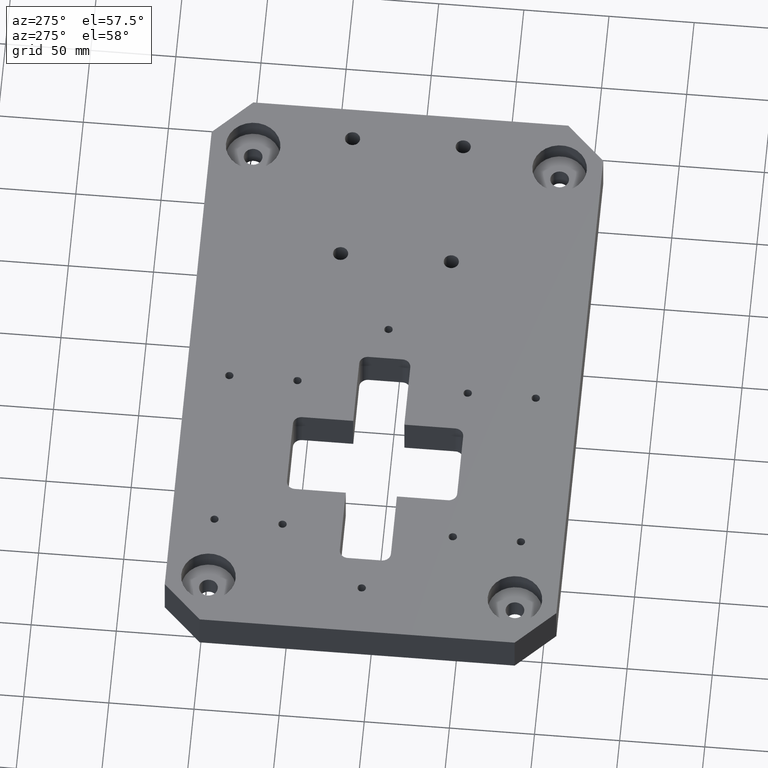
[diagram: clean part render]
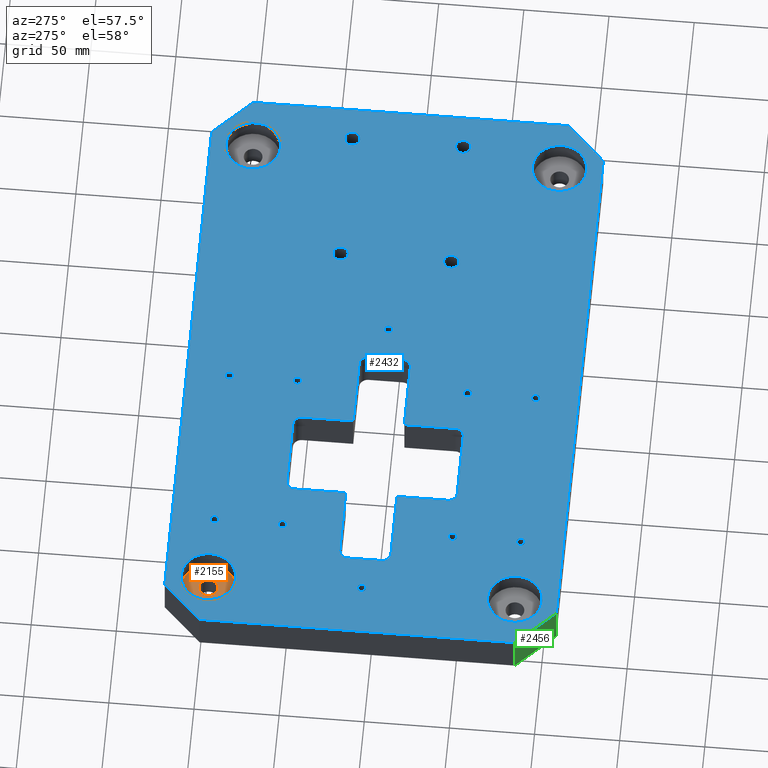
[diagram: same view with three faces highlighted in distinct colors, each labeled with its STEP entity id]
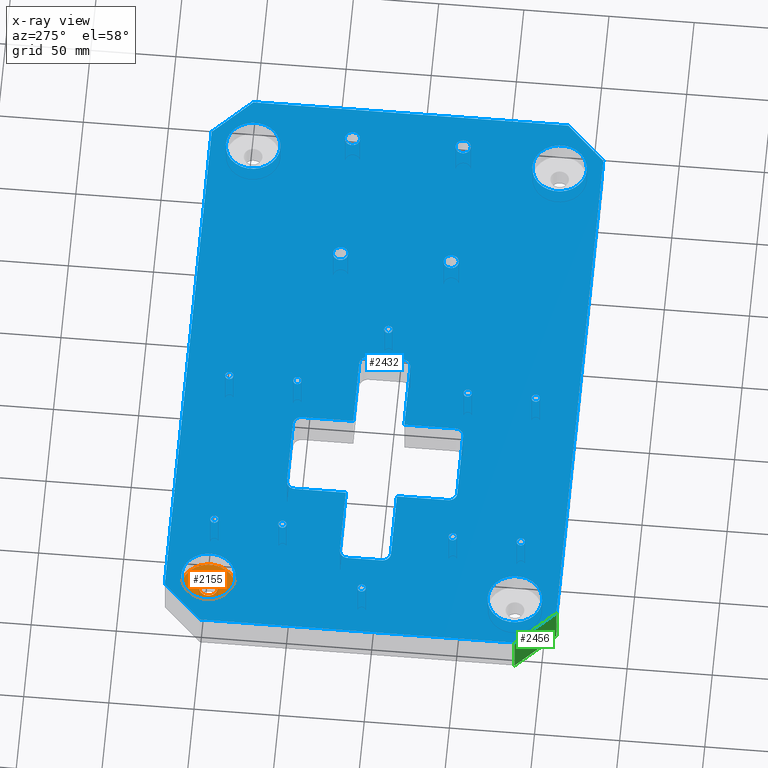
[diagram: x-ray of the same camera — body ghosted, the three highlighted faces saturated]
A machine part, auxiliary view with three faces highlighted in distinct colors.
The next image is the same camera in x-ray (body ghosted, the three faces saturated) — at least one of them is partly hidden behind the body in this view.
Their STEP definitions:

[orange] entity #2155 — the highlighted planar face has unit normal (0, 0, -1).
#141=CARTESIAN_POINT('',(-150.0,95.500000000000000,0.499999999999943));
#142=VERTEX_POINT('',#141);
#151=CARTESIAN_POINT('',(-150.0,84.500000000000000,0.500000000000000));
#152=VERTEX_POINT('',#151);
#153=CARTESIAN_POINT('',(-150.0,90.0,0.500000000000000));
#154=DIRECTION('',(0.0,0.0,-1.0));
#155=DIRECTION('',(0.0,1.0,0.0));
#156=AXIS2_PLACEMENT_3D('',#153,#154,#155);
#157=CIRCLE('',#156,5.500000000000000);
#158=EDGE_CURVE('',#152,#142,#157,.T.);
#185=CARTESIAN_POINT('',(-150.0,106.0,0.500000000000000));
#186=VERTEX_POINT('',#185);
#202=CARTESIAN_POINT('',(-150.0,74.0,0.500000000000000));
#203=VERTEX_POINT('',#202);
#210=CARTESIAN_POINT('',(-150.0,90.0,0.500000000000000));
#211=DIRECTION('',(0.0,0.0,-1.0));
#212=DIRECTION('',(0.0,1.0,0.0));
#213=AXIS2_PLACEMENT_3D('',#210,#211,#212);
#214=CIRCLE('',#213,16.0);
#215=EDGE_CURVE('',#203,#186,#214,.T.);
#2130=CARTESIAN_POINT('',(-150.0,90.0,0.500000000000000));
#2131=DIRECTION('',(0.0,0.0,-1.0));
#2132=DIRECTION('',(0.0,1.0,0.0));
#2133=AXIS2_PLACEMENT_3D('',#2130,#2131,#2132);
#2134=PLANE('',#2133);
#2135=CARTESIAN_POINT('',(-150.0,90.0,0.500000000000000));
#2136=DIRECTION('',(0.0,0.0,-1.0));
#2137=DIRECTION('',(0.0,1.0,0.0));
#2138=AXIS2_PLACEMENT_3D('',#2135,#2136,#2137);
#2139=CIRCLE('',#2138,16.0);
#2140=EDGE_CURVE('',#186,#203,#2139,.T.);
#2141=ORIENTED_EDGE('',*,*,#2140,.F.);
#2142=ORIENTED_EDGE('',*,*,#215,.F.);
#2143=EDGE_LOOP('',(#2141,#2142));
#2144=FACE_OUTER_BOUND('',#2143,.T.);
#2145=ORIENTED_EDGE('',*,*,#158,.T.);
#2146=CARTESIAN_POINT('',(-150.0,90.0,0.500000000000000));
#2147=DIRECTION('',(0.0,0.0,-1.0));
#2148=DIRECTION('',(0.0,1.0,0.0));
#2149=AXIS2_PLACEMENT_3D('',#2146,#2147,#2148);
#2150=CIRCLE('',#2149,5.500000000000000);
#2151=EDGE_CURVE('',#142,#152,#2150,.T.);
#2152=ORIENTED_EDGE('',*,*,#2151,.T.);
#2153=EDGE_LOOP('',(#2145,#2152));
#2154=FACE_BOUND('',#2153,.T.);
#2155=ADVANCED_FACE('',(#2144,#2154),#2134,.F.);

[blue] entity #2432 — the highlighted planar face has unit normal (0, 0, -1).
#183=CARTESIAN_POINT('',(-150.0,106.0,12.500000000000000));
#184=VERTEX_POINT('',#183);
#193=CARTESIAN_POINT('',(-150.0,74.0,12.500000000000000));
#194=VERTEX_POINT('',#193);
#195=CARTESIAN_POINT('',(-150.0,90.0,12.500000000000000));
#196=DIRECTION('',(0.0,0.0,-1.0));
#197=DIRECTION('',(0.0,1.0,0.0));
#198=AXIS2_PLACEMENT_3D('',#195,#196,#197);
#199=CIRCLE('',#198,16.0);
#200=EDGE_CURVE('',#194,#184,#199,.T.);
#267=CARTESIAN_POINT('',(-150.0,-74.0,12.500000000000000));
#268=VERTEX_POINT('',#267);
#277=CARTESIAN_POINT('',(-150.0,-106.0,12.500000000000000));
#278=VERTEX_POINT('',#277);
#279=CARTESIAN_POINT('',(-150.0,-90.0,12.500000000000000));
#280=DIRECTION('',(0.0,0.0,-1.0));
#281=DIRECTION('',(0.0,1.0,0.0));
#282=AXIS2_PLACEMENT_3D('',#279,#280,#281);
#283=CIRCLE('',#282,16.0);
#284=EDGE_CURVE('',#278,#268,#283,.T.);
#351=CARTESIAN_POINT('',(150.0,106.000000000000070,12.500000000000000));
#352=VERTEX_POINT('',#351);
#361=CARTESIAN_POINT('',(150.0,74.000000000000071,12.500000000000000));
#362=VERTEX_POINT('',#361);
#363=CARTESIAN_POINT('',(150.0,90.000000000000071,12.500000000000000));
#364=DIRECTION('',(0.0,0.0,-1.0));
#365=DIRECTION('',(0.0,1.0,0.0));
#366=AXIS2_PLACEMENT_3D('',#363,#364,#365);
#367=CIRCLE('',#366,16.0);
#368=EDGE_CURVE('',#362,#352,#367,.T.);
#435=CARTESIAN_POINT('',(150.0,-73.999999999999943,12.500000000000000));
#436=VERTEX_POINT('',#435);
#445=CARTESIAN_POINT('',(150.0,-105.999999999999940,12.500000000000000));
#446=VERTEX_POINT('',#445);
#447=CARTESIAN_POINT('',(150.0,-89.999999999999943,12.500000000000000));
#448=DIRECTION('',(0.0,0.0,-1.0));
#449=DIRECTION('',(0.0,1.0,0.0));
#450=AXIS2_PLACEMENT_3D('',#447,#448,#449);
#451=CIRCLE('',#450,16.0);
#452=EDGE_CURVE('',#446,#436,#451,.T.);
#477=CARTESIAN_POINT('',(159.999999999999970,36.956000000000003,12.500000000000000));
#478=VERTEX_POINT('',#477);
#487=CARTESIAN_POINT('',(159.999999999999970,28.044000000000000,12.500000000000000));
#488=VERTEX_POINT('',#487);
#489=CARTESIAN_POINT('',(159.999999999999970,32.500000000000000,12.500000000000000));
#490=DIRECTION('',(0.0,0.0,-1.0));
#491=DIRECTION('',(0.0,1.0,0.0));
#492=AXIS2_PLACEMENT_3D('',#489,#490,#491);
#493=CIRCLE('',#492,4.456000000000000);
#494=EDGE_CURVE('',#488,#478,#493,.T.);
#519=CARTESIAN_POINT('',(159.999999999999970,-28.044000000000000,12.500000000000000));
#520=VERTEX_POINT('',#519);
#529=CARTESIAN_POINT('',(159.999999999999970,-36.956000000000003,12.500000000000000));
#530=VERTEX_POINT('',#529);
#531=CARTESIAN_POINT('',(159.999999999999970,-32.500000000000000,12.500000000000000));
#532=DIRECTION('',(0.0,0.0,-1.0));
#533=DIRECTION('',(0.0,1.0,0.0));
#534=AXIS2_PLACEMENT_3D('',#531,#532,#533);
#535=CIRCLE('',#534,4.456000000000000);
#536=EDGE_CURVE('',#530,#520,#535,.T.);
#561=CARTESIAN_POINT('',(79.999999999999972,36.955999999999989,12.500000000000000));
#562=VERTEX_POINT('',#561);
#571=CARTESIAN_POINT('',(79.999999999999972,28.043999999999986,12.500000000000000));
#572=VERTEX_POINT('',#571);
#573=CARTESIAN_POINT('',(79.999999999999972,32.499999999999986,12.500000000000000));
#574=DIRECTION('',(0.0,0.0,-1.0));
#575=DIRECTION('',(0.0,1.0,0.0));
#576=AXIS2_PLACEMENT_3D('',#573,#574,#575);
#577=CIRCLE('',#576,4.456000000000000);
#578=EDGE_CURVE('',#572,#562,#577,.T.);
#603=CARTESIAN_POINT('',(79.999999999999972,-28.044000000000015,12.500000000000000));
#604=VERTEX_POINT('',#603);
#613=CARTESIAN_POINT('',(79.999999999999972,-36.956000000000017,12.500000000000000));
#614=VERTEX_POINT('',#613);
#615=CARTESIAN_POINT('',(79.999999999999972,-32.500000000000014,12.500000000000000));
#616=DIRECTION('',(0.0,0.0,-1.0));
#617=DIRECTION('',(0.0,1.0,0.0));
#618=AXIS2_PLACEMENT_3D('',#615,#616,#617);
#619=CIRCLE('',#618,4.456000000000000);
#620=EDGE_CURVE('',#614,#604,#619,.T.);
#645=CARTESIAN_POINT('',(-110.000000000000010,92.458749999999995,12.500000000000000));
#646=VERTEX_POINT('',#645);
#655=CARTESIAN_POINT('',(-110.000000000000010,87.541250000000005,12.500000000000000));
#656=VERTEX_POINT('',#655);
#657=CARTESIAN_POINT('',(-110.000000000000010,90.0,12.500000000000000));
#658=DIRECTION('',(0.0,0.0,-1.0));
#659=DIRECTION('',(0.0,1.0,0.0));
#660=AXIS2_PLACEMENT_3D('',#657,#658,#659);
#661=CIRCLE('',#660,2.458750000000000);
#662=EDGE_CURVE('',#656,#646,#661,.T.);
#687=CARTESIAN_POINT('',(-110.000000000000010,52.458750000000002,12.500000000000000));
#688=VERTEX_POINT('',#687);
#697=CARTESIAN_POINT('',(-110.000000000000010,47.541249999999998,12.500000000000000));
#698=VERTEX_POINT('',#697);
#699=CARTESIAN_POINT('',(-110.000000000000010,50.0,12.500000000000000));
#700=DIRECTION('',(0.0,0.0,-1.0));
#701=DIRECTION('',(0.0,1.0,0.0));
#702=AXIS2_PLACEMENT_3D('',#699,#700,#701);
#703=CIRCLE('',#702,2.458750000000000);
#704=EDGE_CURVE('',#698,#688,#703,.T.);
#729=CARTESIAN_POINT('',(-10.000000000000014,92.458750000000023,12.500000000000000));
#730=VERTEX_POINT('',#729);
#739=CARTESIAN_POINT('',(-10.000000000000014,87.541250000000034,12.500000000000000));
#740=VERTEX_POINT('',#739);
#741=CARTESIAN_POINT('',(-10.000000000000014,90.000000000000028,12.500000000000000));
#742=DIRECTION('',(0.0,0.0,-1.0));
#743=DIRECTION('',(0.0,1.0,0.0));
#744=AXIS2_PLACEMENT_3D('',#741,#742,#743);
#745=CIRCLE('',#744,2.458750000000000);
#746=EDGE_CURVE('',#740,#730,#745,.T.);
#771=CARTESIAN_POINT('',(-10.000000000000014,52.458750000000023,12.500000000000000));
#772=VERTEX_POINT('',#771);
#781=CARTESIAN_POINT('',(-10.000000000000014,47.541250000000019,12.500000000000000));
#782=VERTEX_POINT('',#781);
#783=CARTESIAN_POINT('',(-10.000000000000014,50.000000000000021,12.500000000000000));
#784=DIRECTION('',(0.0,0.0,-1.0));
#785=DIRECTION('',(0.0,1.0,0.0));
#786=AXIS2_PLACEMENT_3D('',#783,#784,#785);
#787=CIRCLE('',#786,2.458750000000000);
#788=EDGE_CURVE('',#782,#772,#787,.T.);
#813=CARTESIAN_POINT('',(-110.000000000000010,-47.541250000000005,12.500000000000000));
#814=VERTEX_POINT('',#813);
#823=CARTESIAN_POINT('',(-110.000000000000010,-52.458750000000002,12.500000000000000));
#824=VERTEX_POINT('',#823);
#825=CARTESIAN_POINT('',(-110.000000000000010,-50.0,12.500000000000000));
#826=DIRECTION('',(0.0,0.0,-1.0));
#827=DIRECTION('',(0.0,1.0,0.0));
#828=AXIS2_PLACEMENT_3D('',#825,#826,#827);
#829=CIRCLE('',#828,2.458750000000000);
#830=EDGE_CURVE('',#824,#814,#829,.T.);
#855=CARTESIAN_POINT('',(-110.000000000000010,-87.541249999999991,12.500000000000000));
#856=VERTEX_POINT('',#855);
#865=CARTESIAN_POINT('',(-110.000000000000010,-92.458749999999995,12.500000000000000));
#866=VERTEX_POINT('',#865);
#867=CARTESIAN_POINT('',(-110.000000000000010,-90.0,12.500000000000000));
#868=DIRECTION('',(0.0,0.0,-1.0));
#869=DIRECTION('',(0.0,1.0,0.0));
#870=AXIS2_PLACEMENT_3D('',#867,#868,#869);
#871=CIRCLE('',#870,2.458750000000000);
#872=EDGE_CURVE('',#866,#856,#871,.T.);
#897=CARTESIAN_POINT('',(-10.000000000000014,-47.541249999999977,12.500000000000000));
#898=VERTEX_POINT('',#897);
#907=CARTESIAN_POINT('',(-10.000000000000014,-52.458749999999974,12.500000000000000));
#908=VERTEX_POINT('',#907);
#909=CARTESIAN_POINT('',(-10.000000000000014,-49.999999999999972,12.500000000000000));
#910=DIRECTION('',(0.0,0.0,-1.0));
#911=DIRECTION('',(0.0,1.0,0.0));
#912=AXIS2_PLACEMENT_3D('',#909,#910,#911);
#913=CIRCLE('',#912,2.458750000000000);
#914=EDGE_CURVE('',#908,#898,#913,.T.);
#939=CARTESIAN_POINT('',(-10.000000000000014,-87.541249999999977,12.500000000000000));
#940=VERTEX_POINT('',#939);
#949=CARTESIAN_POINT('',(-10.000000000000014,-92.458749999999966,12.500000000000000));
#950=VERTEX_POINT('',#949);
#951=CARTESIAN_POINT('',(-10.000000000000014,-89.999999999999972,12.500000000000000));
#952=DIRECTION('',(0.0,0.0,-1.0));
#953=DIRECTION('',(0.0,1.0,0.0));
#954=AXIS2_PLACEMENT_3D('',#951,#952,#953);
#955=CIRCLE('',#954,2.458750000000000);
#956=EDGE_CURVE('',#950,#940,#955,.T.);
#981=CARTESIAN_POINT('',(-150.000000000000030,2.458750000000000,12.500000000000000));
#982=VERTEX_POINT('',#981);
#991=CARTESIAN_POINT('',(-150.000000000000030,-2.458750000000000,12.500000000000000));
#992=VERTEX_POINT('',#991);
#993=CARTESIAN_POINT('',(-150.000000000000030,0.0,12.500000000000000));
#994=DIRECTION('',(0.0,0.0,-1.0));
#995=DIRECTION('',(0.0,1.0,0.0));
#996=AXIS2_PLACEMENT_3D('',#993,#994,#995);
#997=CIRCLE('',#996,2.458750000000000);
#998=EDGE_CURVE('',#992,#982,#997,.T.);
#1023=CARTESIAN_POINT('',(29.999999999999972,2.458750000000040,12.500000000000000));
#1024=VERTEX_POINT('',#1023);
#1033=CARTESIAN_POINT('',(29.999999999999972,-2.458749999999960,12.500000000000000));
#1034=VERTEX_POINT('',#1033);
#1035=CARTESIAN_POINT('',(29.999999999999972,3.996803E-014,12.500000000000000));
#1036=DIRECTION('',(0.0,0.0,-1.0));
#1037=DIRECTION('',(0.0,1.0,0.0));
#1038=AXIS2_PLACEMENT_3D('',#1035,#1036,#1037);
#1039=CIRCLE('',#1038,2.458750000000000);
#1040=EDGE_CURVE('',#1034,#1024,#1039,.T.);
#1074=CARTESIAN_POINT('',(29.999999999999972,3.996803E-014,12.500000000000000));
#1075=DIRECTION('',(0.0,0.0,-1.0));
#1076=DIRECTION('',(0.0,1.0,0.0));
#1077=AXIS2_PLACEMENT_3D('',#1074,#1075,#1076);
#1078=CIRCLE('',#1077,2.458750000000000);
#1079=EDGE_CURVE('',#1024,#1034,#1078,.T.);
#1098=CARTESIAN_POINT('',(-150.000000000000030,0.0,12.500000000000000));
#1099=DIRECTION('',(0.0,0.0,-1.0));
#1100=DIRECTION('',(0.0,1.0,0.0));
#1101=AXIS2_PLACEMENT_3D('',#1098,#1099,#1100);
#1102=CIRCLE('',#1101,2.458750000000000);
#1103=EDGE_CURVE('',#982,#992,#1102,.T.);
#1122=CARTESIAN_POINT('',(-10.000000000000014,-89.999999999999972,12.500000000000000));
#1123=DIRECTION('',(0.0,0.0,-1.0));
#1124=DIRECTION('',(0.0,1.0,0.0));
#1125=AXIS2_PLACEMENT_3D('',#1122,#1123,#1124);
#1126=CIRCLE('',#1125,2.458750000000000);
#1127=EDGE_CURVE('',#940,#950,#1126,.T.);
#1146=CARTESIAN_POINT('',(-10.000000000000014,-49.999999999999972,12.500000000000000));
#1147=DIRECTION('',(0.0,0.0,-1.0));
#1148=DIRECTION('',(0.0,1.0,0.0));
#1149=AXIS2_PLACEMENT_3D('',#1146,#1147,#1148);
#1150=CIRCLE('',#1149,2.458750000000000);
#1151=EDGE_CURVE('',#898,#908,#1150,.T.);
#1170=CARTESIAN_POINT('',(-110.000000000000010,-90.0,12.500000000000000));
#1171=DIRECTION('',(0.0,0.0,-1.0));
#1172=DIRECTION('',(0.0,1.0,0.0));
#1173=AXIS2_PLACEMENT_3D('',#1170,#1171,#1172);
#1174=CIRCLE('',#1173,2.458750000000000);
#1175=EDGE_CURVE('',#856,#866,#1174,.T.);
#1194=CARTESIAN_POINT('',(-110.000000000000010,-50.0,12.500000000000000));
#1195=DIRECTION('',(0.0,0.0,-1.0));
#1196=DIRECTION('',(0.0,1.0,0.0));
#1197=AXIS2_PLACEMENT_3D('',#1194,#1195,#1196);
#1198=CIRCLE('',#1197,2.458750000000000);
#1199=EDGE_CURVE('',#814,#824,#1198,.T.);
#1218=CARTESIAN_POINT('',(-10.000000000000014,50.000000000000021,12.500000000000000));
#1219=DIRECTION('',(0.0,0.0,-1.0));
#1220=DIRECTION('',(0.0,1.0,0.0));
#1221=AXIS2_PLACEMENT_3D('',#1218,#1219,#1220);
#1222=CIRCLE('',#1221,2.458750000000000);
#1223=EDGE_CURVE('',#772,#782,#1222,.T.);
#1242=CARTESIAN_POINT('',(-10.000000000000014,90.000000000000028,12.500000000000000));
#1243=DIRECTION('',(0.0,0.0,-1.0));
#1244=DIRECTION('',(0.0,1.0,0.0));
#1245=AXIS2_PLACEMENT_3D('',#1242,#1243,#1244);
#1246=CIRCLE('',#1245,2.458750000000000);
#1247=EDGE_CURVE('',#730,#740,#1246,.T.);
#1266=CARTESIAN_POINT('',(-110.000000000000010,50.0,12.500000000000000));
#1267=DIRECTION('',(0.0,0.0,-1.0));
#1268=DIRECTION('',(0.0,1.0,0.0));
#1269=AXIS2_PLACEMENT_3D('',#1266,#1267,#1268);
#1270=CIRCLE('',#1269,2.458750000000000);
#1271=EDGE_CURVE('',#688,#698,#1270,.T.);
#1290=CARTESIAN_POINT('',(-110.000000000000010,90.0,12.500000000000000));
#1291=DIRECTION('',(0.0,0.0,-1.0));
#1292=DIRECTION('',(0.0,1.0,0.0));
#1293=AXIS2_PLACEMENT_3D('',#1290,#1291,#1292);
#1294=CIRCLE('',#1293,2.458750000000000);
#1295=EDGE_CURVE('',#646,#656,#1294,.T.);
#1305=CARTESIAN_POINT('',(-84.999999999999829,-45.0,12.500000000000000));
#1306=VERTEX_POINT('',#1305);
#1307=CARTESIAN_POINT('',(-79.999999999999829,-50.0,12.500000000000000));
#1308=VERTEX_POINT('',#1307);
#1309=CARTESIAN_POINT('',(-79.999999999999829,-45.0,12.500000000000012));
#1310=DIRECTION('',(0.0,0.0,1.000000000000000));
#1311=DIRECTION('',(-0.707106781186547,-0.707106781186547,0.0));
#1312=AXIS2_PLACEMENT_3D('',#1309,#1310,#1311);
#1313=CIRCLE('',#1312,4.999999999999999);
#1314=EDGE_CURVE('',#1306,#1308,#1313,.T.);
#1348=CARTESIAN_POINT('',(-39.999999999999829,-50.0,12.500000000000000));
#1349=VERTEX_POINT('',#1348);
#1350=CARTESIAN_POINT('',(-79.999999999999829,-50.0,12.500000000000000));
#1351=DIRECTION('',(1.0,0.0,0.0));
#1352=VECTOR('',#1351,40.0);
#1353=LINE('',#1350,#1352);
#1354=EDGE_CURVE('',#1308,#1349,#1353,.T.);
#1378=CARTESIAN_POINT('',(-34.999999999999829,-45.0,12.500000000000000));
#1379=VERTEX_POINT('',#1378);
#1380=CARTESIAN_POINT('',(-39.999999999999829,-45.0,12.500000000000012));
#1381=DIRECTION('',(0.0,0.0,1.000000000000000));
#1382=DIRECTION('',(0.707106781186547,-0.707106781186547,0.0));
#1383=AXIS2_PLACEMENT_3D('',#1380,#1381,#1382);
#1384=CIRCLE('',#1383,4.999999999999999);
#1385=EDGE_CURVE('',#1349,#1379,#1384,.T.);
#1412=CARTESIAN_POINT('',(-34.999999999999829,-15.0,12.500000000000000));
#1413=VERTEX_POINT('',#1412);
#1414=CARTESIAN_POINT('',(-34.999999999999829,-45.0,12.500000000000000));
#1415=DIRECTION('',(0.0,1.0,0.0));
#1416=VECTOR('',#1415,30.0);
#1417=LINE('',#1414,#1416);
#1418=EDGE_CURVE('',#1379,#1413,#1417,.T.);
#1442=CARTESIAN_POINT('',(5.000000000000185,-15.0,12.500000000000000));
#1443=VERTEX_POINT('',#1442);
#1444=CARTESIAN_POINT('',(10.000000000000185,-10.0,12.500000000000000));
#1445=VERTEX_POINT('',#1444);
#1446=CARTESIAN_POINT('',(5.000000000000185,-10.0,12.500000000000004));
#1447=DIRECTION('',(0.0,0.0,1.000000000000000));
#1448=DIRECTION('',(0.707106781186547,-0.707106781186547,0.0));
#1449=AXIS2_PLACEMENT_3D('',#1446,#1447,#1448);
#1450=CIRCLE('',#1449,4.999999999999999);
#1451=EDGE_CURVE('',#1443,#1445,#1450,.T.);
#1485=CARTESIAN_POINT('',(10.000000000000185,10.0,12.500000000000000));
#1486=VERTEX_POINT('',#1485);
#1487=CARTESIAN_POINT('',(10.000000000000185,-10.0,12.500000000000000));
#1488=DIRECTION('',(0.0,1.0,0.0));
#1489=VECTOR('',#1488,20.0);
#1490=LINE('',#1487,#1489);
#1491=EDGE_CURVE('',#1445,#1486,#1490,.T.);
#1515=CARTESIAN_POINT('',(5.000000000000185,15.0,12.500000000000000));
#1516=VERTEX_POINT('',#1515);
#1517=CARTESIAN_POINT('',(5.000000000000185,10.0,12.499999999999996));
#1518=DIRECTION('',(0.0,0.0,1.000000000000000));
#1519=DIRECTION('',(0.707106781186547,0.707106781186547,0.0));
#1520=AXIS2_PLACEMENT_3D('',#1517,#1518,#1519);
#1521=CIRCLE('',#1520,4.999999999999999);
#1522=EDGE_CURVE('',#1486,#1516,#1521,.T.);
#1549=CARTESIAN_POINT('',(-34.999999999999829,15.0,12.500000000000000));
#1550=VERTEX_POINT('',#1549);
#1551=CARTESIAN_POINT('',(5.000000000000185,15.0,12.500000000000000));
#1552=DIRECTION('',(-1.0,0.0,0.0));
#1553=VECTOR('',#1552,40.000000000000014);
#1554=LINE('',#1551,#1553);
#1555=EDGE_CURVE('',#1516,#1550,#1554,.T.);
#1579=CARTESIAN_POINT('',(-34.999999999999829,45.0,12.500000000000000));
#1580=VERTEX_POINT('',#1579);
#1581=CARTESIAN_POINT('',(-39.999999999999829,50.0,12.500000000000000));
#1582=VERTEX_POINT('',#1581);
#1583=CARTESIAN_POINT('',(-39.999999999999829,45.0,12.499999999999988));
#1584=DIRECTION('',(0.0,0.0,1.000000000000000));
#1585=DIRECTION('',(0.707106781186547,0.707106781186547,0.0));
#1586=AXIS2_PLACEMENT_3D('',#1583,#1584,#1585);
#1587=CIRCLE('',#1586,4.999999999999999);
#1588=EDGE_CURVE('',#1580,#1582,#1587,.T.);
#1622=CARTESIAN_POINT('',(-79.999999999999829,50.0,12.500000000000000));
#1623=VERTEX_POINT('',#1622);
#1624=CARTESIAN_POINT('',(-39.999999999999829,50.0,12.500000000000000));
#1625=DIRECTION('',(-1.0,0.0,0.0));
#1626=VECTOR('',#1625,40.0);
#1627=LINE('',#1624,#1626);
#1628=EDGE_CURVE('',#1582,#1623,#1627,.T.);
#1652=CARTESIAN_POINT('',(-84.999999999999829,45.0,12.500000000000000));
#1653=VERTEX_POINT('',#1652);
#1654=CARTESIAN_POINT('',(-79.999999999999829,45.0,12.499999999999988));
#1655=DIRECTION('',(0.0,0.0,1.000000000000000));
#1656=DIRECTION('',(-0.707106781186547,0.707106781186547,0.0));
#1657=AXIS2_PLACEMENT_3D('',#1654,#1655,#1656);
#1658=CIRCLE('',#1657,4.999999999999999);
#1659=EDGE_CURVE('',#1623,#1653,#1658,.T.);
#1686=CARTESIAN_POINT('',(-84.999999999999829,15.0,12.500000000000000));
#1687=VERTEX_POINT('',#1686);
#1688=CARTESIAN_POINT('',(-84.999999999999829,45.0,12.500000000000000));
#1689=DIRECTION('',(0.0,-1.0,0.0));
#1690=VECTOR('',#1689,30.0);
#1691=LINE('',#1688,#1690);
#1692=EDGE_CURVE('',#1653,#1687,#1691,.T.);
#1716=CARTESIAN_POINT('',(-129.999999999999830,-10.0,12.500000000000000));
#1717=VERTEX_POINT('',#1716);
#1718=CARTESIAN_POINT('',(-124.999999999999830,-15.0,12.500000000000000));
#1719=VERTEX_POINT('',#1718);
#1720=CARTESIAN_POINT('',(-124.999999999999830,-10.0,12.500000000000004));
#1721=DIRECTION('',(0.0,0.0,1.000000000000000));
#1722=DIRECTION('',(-0.707106781186547,-0.707106781186547,0.0));
#1723=AXIS2_PLACEMENT_3D('',#1720,#1721,#1722);
#1724=CIRCLE('',#1723,4.999999999999999);
#1725=EDGE_CURVE('',#1717,#1719,#1724,.T.);
#1759=CARTESIAN_POINT('',(-84.999999999999815,-15.0,12.500000000000000));
#1760=VERTEX_POINT('',#1759);
#1761=CARTESIAN_POINT('',(-124.999999999999830,-15.0,12.500000000000000));
#1762=DIRECTION('',(1.0,0.0,0.0));
#1763=VECTOR('',#1762,40.000000000000014);
#1764=LINE('',#1761,#1763);
#1765=EDGE_CURVE('',#1719,#1760,#1764,.T.);
#1789=CARTESIAN_POINT('',(-124.999999999999830,15.0,12.500000000000000));
#1790=VERTEX_POINT('',#1789);
#1791=CARTESIAN_POINT('',(-129.999999999999830,10.0,12.500000000000000));
#1792=VERTEX_POINT('',#1791);
#1793=CARTESIAN_POINT('',(-124.999999999999830,10.0,12.499999999999996));
#1794=DIRECTION('',(0.0,0.0,1.000000000000000));
#1795=DIRECTION('',(-0.707106781186547,0.707106781186547,0.0));
#1796=AXIS2_PLACEMENT_3D('',#1793,#1794,#1795);
#1797=CIRCLE('',#1796,4.999999999999999);
#1798=EDGE_CURVE('',#1790,#1792,#1797,.T.);
#1839=CARTESIAN_POINT('',(-129.999999999999830,10.0,12.500000000000000));
#1840=DIRECTION('',(0.0,-1.0,0.0));
#1841=VECTOR('',#1840,20.0);
#1842=LINE('',#1839,#1841);
#1843=EDGE_CURVE('',#1792,#1717,#1842,.T.);
#1862=CARTESIAN_POINT('',(79.999999999999972,-32.500000000000014,12.500000000000000));
#1863=DIRECTION('',(0.0,0.0,-1.0));
#1864=DIRECTION('',(0.0,1.0,0.0));
#1865=AXIS2_PLACEMENT_3D('',#1862,#1863,#1864);
#1866=CIRCLE('',#1865,4.456000000000000);
#1867=EDGE_CURVE('',#604,#614,#1866,.T.);
#1886=CARTESIAN_POINT('',(79.999999999999972,32.499999999999986,12.500000000000000));
#1887=DIRECTION('',(0.0,0.0,-1.0));
#1888=DIRECTION('',(0.0,1.0,0.0));
#1889=AXIS2_PLACEMENT_3D('',#1886,#1887,#1888);
#1890=CIRCLE('',#1889,4.456000000000000);
#1891=EDGE_CURVE('',#562,#572,#1890,.T.);
#1910=CARTESIAN_POINT('',(159.999999999999970,-32.500000000000000,12.500000000000000));
#1911=DIRECTION('',(0.0,0.0,-1.0));
#1912=DIRECTION('',(0.0,1.0,0.0));
#1913=AXIS2_PLACEMENT_3D('',#1910,#1911,#1912);
#1914=CIRCLE('',#1913,4.456000000000000);
#1915=EDGE_CURVE('',#520,#530,#1914,.T.);
#1934=CARTESIAN_POINT('',(159.999999999999970,32.500000000000000,12.500000000000000));
#1935=DIRECTION('',(0.0,0.0,-1.0));
#1936=DIRECTION('',(0.0,1.0,0.0));
#1937=AXIS2_PLACEMENT_3D('',#1934,#1935,#1936);
#1938=CIRCLE('',#1937,4.456000000000000);
#1939=EDGE_CURVE('',#478,#488,#1938,.T.);
#1978=CARTESIAN_POINT('',(150.0,-89.999999999999943,12.500000000000000));
#1979=DIRECTION('',(0.0,0.0,-1.0));
#1980=DIRECTION('',(0.0,1.0,0.0));
#1981=AXIS2_PLACEMENT_3D('',#1978,#1979,#1980);
#1982=CIRCLE('',#1981,16.0);
#1983=EDGE_CURVE('',#436,#446,#1982,.T.);
#2040=CARTESIAN_POINT('',(150.0,90.000000000000071,12.500000000000000));
#2041=DIRECTION('',(0.0,0.0,-1.0));
#2042=DIRECTION('',(0.0,1.0,0.0));
#2043=AXIS2_PLACEMENT_3D('',#2040,#2041,#2042);
#2044=CIRCLE('',#2043,16.0);
#2045=EDGE_CURVE('',#352,#362,#2044,.T.);
#2102=CARTESIAN_POINT('',(-150.0,-90.0,12.500000000000000));
#2103=DIRECTION('',(0.0,0.0,-1.0));
#2104=DIRECTION('',(0.0,1.0,0.0));
#2105=AXIS2_PLACEMENT_3D('',#2102,#2103,#2104);
#2106=CIRCLE('',#2105,16.0);
#2107=EDGE_CURVE('',#268,#278,#2106,.T.);
#2164=CARTESIAN_POINT('',(-150.0,90.0,12.500000000000000));
#2165=DIRECTION('',(0.0,0.0,-1.0));
#2166=DIRECTION('',(0.0,1.0,0.0));
#2167=AXIS2_PLACEMENT_3D('',#2164,#2165,#2166);
#2168=CIRCLE('',#2167,16.0);
#2169=EDGE_CURVE('',#184,#194,#2168,.T.);
#2207=CARTESIAN_POINT('',(180.000000000000030,-92.500000000000000,12.500000000000000));
#2208=VERTEX_POINT('',#2207);
#2215=CARTESIAN_POINT('',(157.500000000000060,-115.0,12.500000000000000));
#2216=VERTEX_POINT('',#2215);
#2217=CARTESIAN_POINT('',(180.000000000000030,-92.500000000000000,12.500000000000000));
#2218=DIRECTION('',(-0.707106781186547,-0.707106781186548,0.0));
#2219=VECTOR('',#2218,31.819805153394618);
#2220=LINE('',#2217,#2219);
#2221=EDGE_CURVE('',#2208,#2216,#2220,.T.);
#2238=CARTESIAN_POINT('',(-157.500000000000060,-115.0,12.500000000000000));
#2239=VERTEX_POINT('',#2238);
#2240=CARTESIAN_POINT('',(-157.500000000000060,-115.0,12.500000000000000));
#2241=DIRECTION('',(1.0,0.0,0.0));
#2242=VECTOR('',#2241,315.000000000000110);
#2243=LINE('',#2240,#2242);
#2244=EDGE_CURVE('',#2239,#2216,#2243,.T.);
#2263=CARTESIAN_POINT('',(0.0,0.0,12.500000000000000));
#2264=DIRECTION('',(0.0,0.0,-1.0));
#2265=DIRECTION('',(0.0,1.0,0.0));
#2266=AXIS2_PLACEMENT_3D('',#2263,#2264,#2265);
#2267=PLANE('',#2266);
#2268=ORIENTED_EDGE('',*,*,#2221,.F.);
#2269=CARTESIAN_POINT('',(179.999999999999970,92.500000000000000,12.500000000000000));
#2270=VERTEX_POINT('',#2269);
#2271=CARTESIAN_POINT('',(180.000000000000030,-92.500000000000000,12.500000000000000));
#2272=DIRECTION('',(0.0,1.0,0.0));
#2273=VECTOR('',#2272,185.0);
#2274=LINE('',#2271,#2273);
#2275=EDGE_CURVE('',#2208,#2270,#2274,.T.);
#2276=ORIENTED_EDGE('',*,*,#2275,.T.);
#2277=CARTESIAN_POINT('',(157.500000000000000,115.0,12.500000000000000));
#2278=VERTEX_POINT('',#2277);
#2279=CARTESIAN_POINT('',(157.500000000000000,115.0,12.500000000000000));
#2280=DIRECTION('',(0.707106781186547,-0.707106781186548,0.0));
#2281=VECTOR('',#2280,31.819805153394618);
#2282=LINE('',#2279,#2281);
#2283=EDGE_CURVE('',#2278,#2270,#2282,.T.);
#2284=ORIENTED_EDGE('',*,*,#2283,.F.);
#2285=CARTESIAN_POINT('',(-157.500000000000000,115.0,12.500000000000000));
#2286=VERTEX_POINT('',#2285);
#2287=CARTESIAN_POINT('',(157.500000000000000,115.0,12.500000000000000));
#2288=DIRECTION('',(-1.0,0.0,0.0));
#2289=VECTOR('',#2288,315.0);
#2290=LINE('',#2287,#2289);
#2291=EDGE_CURVE('',#2278,#2286,#2290,.T.);
#2292=ORIENTED_EDGE('',*,*,#2291,.T.);
#2293=CARTESIAN_POINT('',(-180.000000000000030,92.500000000000000,12.500000000000000));
#2294=VERTEX_POINT('',#2293);
#2295=CARTESIAN_POINT('',(-180.000000000000030,92.500000000000000,12.500000000000000));
#2296=DIRECTION('',(0.707106781186548,0.707106781186547,0.0));
#2297=VECTOR('',#2296,31.819805153394661);
#2298=LINE('',#2295,#2297);
#2299=EDGE_CURVE('',#2294,#2286,#2298,.T.);
#2300=ORIENTED_EDGE('',*,*,#2299,.F.);
#2301=CARTESIAN_POINT('',(-180.000000000000030,-92.500000000000000,12.500000000000000));
#2302=VERTEX_POINT('',#2301);
#2303=CARTESIAN_POINT('',(-180.000000000000030,92.500000000000000,12.500000000000000));
#2304=DIRECTION('',(0.0,-1.0,0.0));
#2305=VECTOR('',#2304,185.0);
#2306=LINE('',#2303,#2305);
#2307=EDGE_CURVE('',#2294,#2302,#2306,.T.);
#2308=ORIENTED_EDGE('',*,*,#2307,.T.);
#2309=CARTESIAN_POINT('',(-157.500000000000060,-115.0,12.500000000000000));
#2310=DIRECTION('',(-0.707106781186547,0.707106781186548,0.0));
#2311=VECTOR('',#2310,31.819805153394618);
#2312=LINE('',#2309,#2311);
#2313=EDGE_CURVE('',#2239,#2302,#2312,.T.);
#2314=ORIENTED_EDGE('',*,*,#2313,.F.);
#2315=ORIENTED_EDGE('',*,*,#2244,.T.);
#2316=EDGE_LOOP('',(#2268,#2276,#2284,#2292,#2300,#2308,#2314,#2315));
#2317=FACE_OUTER_BOUND('',#2316,.T.);
#2318=ORIENTED_EDGE('',*,*,#1079,.T.);
#2319=ORIENTED_EDGE('',*,*,#1040,.T.);
#2320=EDGE_LOOP('',(#2318,#2319));
#2321=FACE_BOUND('',#2320,.T.);
#2322=ORIENTED_EDGE('',*,*,#1103,.T.);
#2323=ORIENTED_EDGE('',*,*,#998,.T.);
#2324=EDGE_LOOP('',(#2322,#2323));
#2325=FACE_BOUND('',#2324,.T.);
#2326=ORIENTED_EDGE('',*,*,#1127,.T.);
#2327=ORIENTED_EDGE('',*,*,#956,.T.);
#2328=EDGE_LOOP('',(#2326,#2327));
#2329=FACE_BOUND('',#2328,.T.);
#2330=ORIENTED_EDGE('',*,*,#1151,.T.);
#2331=ORIENTED_EDGE('',*,*,#914,.T.);
#2332=EDGE_LOOP('',(#2330,#2331));
#2333=FACE_BOUND('',#2332,.T.);
#2334=ORIENTED_EDGE('',*,*,#1175,.T.);
#2335=ORIENTED_EDGE('',*,*,#872,.T.);
#2336=EDGE_LOOP('',(#2334,#2335));
#2337=FACE_BOUND('',#2336,.T.);
#2338=ORIENTED_EDGE('',*,*,#1199,.T.);
#2339=ORIENTED_EDGE('',*,*,#830,.T.);
#2340=EDGE_LOOP('',(#2338,#2339));
#2341=FACE_BOUND('',#2340,.T.);
#2342=ORIENTED_EDGE('',*,*,#1223,.T.);
#2343=ORIENTED_EDGE('',*,*,#788,.T.);
#2344=EDGE_LOOP('',(#2342,#2343));
#2345=FACE_BOUND('',#2344,.T.);
#2346=ORIENTED_EDGE('',*,*,#1247,.T.);
#2347=ORIENTED_EDGE('',*,*,#746,.T.);
#2348=EDGE_LOOP('',(#2346,#2347));
#2349=FACE_BOUND('',#2348,.T.);
#2350=ORIENTED_EDGE('',*,*,#1271,.T.);
#2351=ORIENTED_EDGE('',*,*,#704,.T.);
#2352=EDGE_LOOP('',(#2350,#2351));
#2353=FACE_BOUND('',#2352,.T.);
#2354=ORIENTED_EDGE('',*,*,#1295,.T.);
#2355=ORIENTED_EDGE('',*,*,#662,.T.);
#2356=EDGE_LOOP('',(#2354,#2355));
#2357=FACE_BOUND('',#2356,.T.);
#2358=ORIENTED_EDGE('',*,*,#1867,.T.);
#2359=ORIENTED_EDGE('',*,*,#620,.T.);
#2360=EDGE_LOOP('',(#2358,#2359));
#2361=FACE_BOUND('',#2360,.T.);
#2362=ORIENTED_EDGE('',*,*,#1891,.T.);
#2363=ORIENTED_EDGE('',*,*,#578,.T.);
#2364=EDGE_LOOP('',(#2362,#2363));
#2365=FACE_BOUND('',#2364,.T.);
#2366=ORIENTED_EDGE('',*,*,#1915,.T.);
#2367=ORIENTED_EDGE('',*,*,#536,.T.);
#2368=EDGE_LOOP('',(#2366,#2367));
#2369=FACE_BOUND('',#2368,.T.);
#2370=ORIENTED_EDGE('',*,*,#1939,.T.);
#2371=ORIENTED_EDGE('',*,*,#494,.T.);
#2372=EDGE_LOOP('',(#2370,#2371));
#2373=FACE_BOUND('',#2372,.T.);
#2374=ORIENTED_EDGE('',*,*,#1983,.T.);
#2375=ORIENTED_EDGE('',*,*,#452,.T.);
#2376=EDGE_LOOP('',(#2374,#2375));
#2377=FACE_BOUND('',#2376,.T.);
#2378=ORIENTED_EDGE('',*,*,#2045,.T.);
#2379=ORIENTED_EDGE('',*,*,#368,.T.);
#2380=EDGE_LOOP('',(#2378,#2379));
#2381=FACE_BOUND('',#2380,.T.);
#2382=ORIENTED_EDGE('',*,*,#2107,.T.);
#2383=ORIENTED_EDGE('',*,*,#284,.T.);
#2384=EDGE_LOOP('',(#2382,#2383));
#2385=FACE_BOUND('',#2384,.T.);
#2386=ORIENTED_EDGE('',*,*,#2169,.T.);
#2387=ORIENTED_EDGE('',*,*,#200,.T.);
#2388=EDGE_LOOP('',(#2386,#2387));
#2389=FACE_BOUND('',#2388,.T.);
#2390=ORIENTED_EDGE('',*,*,#1385,.F.);
#2391=ORIENTED_EDGE('',*,*,#1354,.F.);
#2392=ORIENTED_EDGE('',*,*,#1314,.F.);
#2393=CARTESIAN_POINT('',(-84.999999999999815,-15.0,12.500000000000000));
#2394=DIRECTION('',(0.0,-1.0,0.0));
#2395=VECTOR('',#2394,30.0);
#2396=LINE('',#2393,#2395);
#2397=EDGE_CURVE('',#1760,#1306,#2396,.T.);
#2398=ORIENTED_EDGE('',*,*,#2397,.F.);
#2399=ORIENTED_EDGE('',*,*,#1765,.F.);
#2400=ORIENTED_EDGE('',*,*,#1725,.F.);
#2401=ORIENTED_EDGE('',*,*,#1843,.F.);
#2402=ORIENTED_EDGE('',*,*,#1798,.F.);
#2403=CARTESIAN_POINT('',(-84.999999999999829,15.0,12.500000000000000));
#2404=DIRECTION('',(-1.0,0.0,0.0));
#2405=VECTOR('',#2404,40.0);
#2406=LINE('',#2403,#2405);
#2407=EDGE_CURVE('',#1687,#1790,#2406,.T.);
#2408=ORIENTED_EDGE('',*,*,#2407,.F.);
#2409=ORIENTED_EDGE('',*,*,#1692,.F.);
#2410=ORIENTED_EDGE('',*,*,#1659,.F.);
#2411=ORIENTED_EDGE('',*,*,#1628,.F.);
#2412=ORIENTED_EDGE('',*,*,#1588,.F.);
#2413=CARTESIAN_POINT('',(-34.999999999999829,15.0,12.500000000000000));
#2414=DIRECTION('',(0.0,1.0,0.0));
#2415=VECTOR('',#2414,30.0);
#2416=LINE('',#2413,#2415);
#2417=EDGE_CURVE('',#1550,#1580,#2416,.T.);
#2418=ORIENTED_EDGE('',*,*,#2417,.F.);
#2419=ORIENTED_EDGE('',*,*,#1555,.F.);
#2420=ORIENTED_EDGE('',*,*,#1522,.F.);
#2421=ORIENTED_EDGE('',*,*,#1491,.F.);
#2422=ORIENTED_EDGE('',*,*,#1451,.F.);
#2423=CARTESIAN_POINT('',(-34.999999999999829,-15.0,12.500000000000000));
#2424=DIRECTION('',(1.0,0.0,0.0));
#2425=VECTOR('',#2424,40.000000000000014);
#2426=LINE('',#2423,#2425);
#2427=EDGE_CURVE('',#1413,#1443,#2426,.T.);
#2428=ORIENTED_EDGE('',*,*,#2427,.F.);
#2429=ORIENTED_EDGE('',*,*,#1418,.F.);
#2430=EDGE_LOOP('',(#2390,#2391,#2392,#2398,#2399,#2400,#2401,#2402,#2408,#2409,#2410,#2411,#2412,#2418,#2419,#2420,#2421,#2422,#2428,#2429));
#2431=FACE_BOUND('',#2430,.T.);
#2432=ADVANCED_FACE('',(#2317,#2321,#2325,#2329,#2333,#2337,#2341,#2345,#2349,#2353,#2357,#2361,#2365,#2369,#2373,#2377,#2381,#2385,#2389,#2431),#2267,.F.);

[green] entity #2456 — the highlighted planar face has unit normal (-0.7071, -0.7071, 0).
#2238=CARTESIAN_POINT('',(-157.500000000000060,-115.0,12.500000000000000));
#2239=VERTEX_POINT('',#2238);
#2246=CARTESIAN_POINT('',(-157.500000000000060,-115.0,-12.500000000000000));
#2247=VERTEX_POINT('',#2246);
#2248=CARTESIAN_POINT('',(-157.500000000000060,-115.0,-12.500000000000000));
#2249=DIRECTION('',(0.0,0.0,1.0));
#2250=VECTOR('',#2249,25.0);
#2251=LINE('',#2248,#2250);
#2252=EDGE_CURVE('',#2247,#2239,#2251,.T.);
#2301=CARTESIAN_POINT('',(-180.000000000000030,-92.500000000000000,12.500000000000000));
#2302=VERTEX_POINT('',#2301);
#2309=CARTESIAN_POINT('',(-157.500000000000060,-115.0,12.500000000000000));
#2310=DIRECTION('',(-0.707106781186547,0.707106781186548,0.0));
#2311=VECTOR('',#2310,31.819805153394618);
#2312=LINE('',#2309,#2311);
#2313=EDGE_CURVE('',#2239,#2302,#2312,.T.);
#2433=CARTESIAN_POINT('',(-168.750000000000060,-103.750000000000000,12.500000000000030));
#2434=DIRECTION('',(-0.707106781186548,-0.707106781186547,2.009718E-016));
#2435=DIRECTION('',(0.0,0.0,1.0));
#2436=AXIS2_PLACEMENT_3D('',#2433,#2434,#2435);
#2437=PLANE('',#2436);
#2438=CARTESIAN_POINT('',(-180.000000000000030,-92.500000000000028,-12.500000000000000));
#2439=VERTEX_POINT('',#2438);
#2440=CARTESIAN_POINT('',(-180.000000000000030,-92.500000000000028,-12.500000000000000));
#2441=DIRECTION('',(0.707106781186547,-0.707106781186547,0.0));
#2442=VECTOR('',#2441,31.819805153394601);
#2443=LINE('',#2440,#2442);
#2444=EDGE_CURVE('',#2439,#2247,#2443,.T.);
#2445=ORIENTED_EDGE('',*,*,#2444,.T.);
#2446=ORIENTED_EDGE('',*,*,#2252,.T.);
#2447=ORIENTED_EDGE('',*,*,#2313,.T.);
#2448=CARTESIAN_POINT('',(-180.000000000000030,-92.500000000000000,12.500000000000000));
#2449=DIRECTION('',(0.0,0.0,-1.0));
#2450=VECTOR('',#2449,25.0);
#2451=LINE('',#2448,#2450);
#2452=EDGE_CURVE('',#2302,#2439,#2451,.T.);
#2453=ORIENTED_EDGE('',*,*,#2452,.T.);
#2454=EDGE_LOOP('',(#2445,#2446,#2447,#2453));
#2455=FACE_OUTER_BOUND('',#2454,.T.);
#2456=ADVANCED_FACE('',(#2455),#2437,.T.);